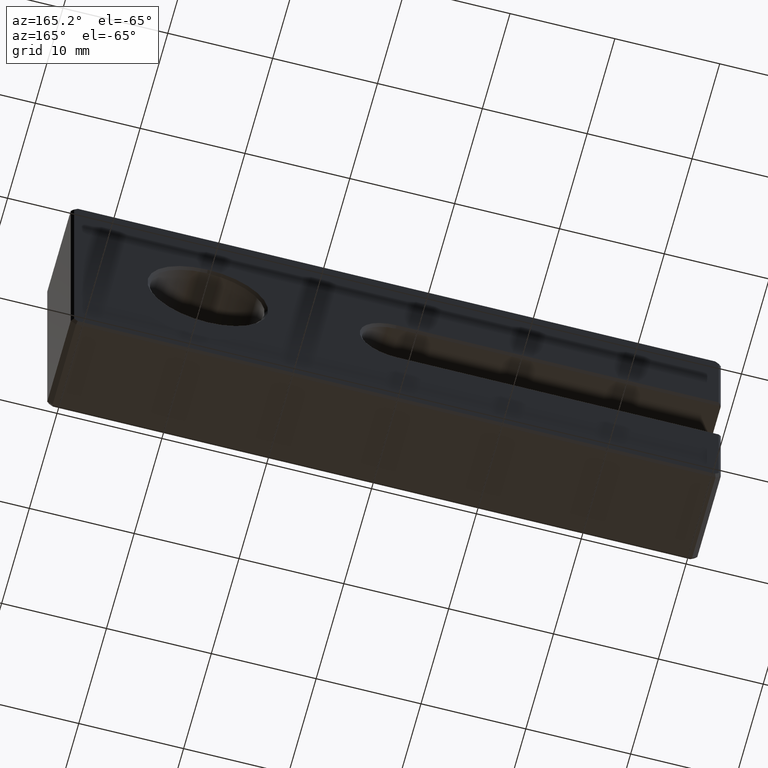
[diagram: clean part render]
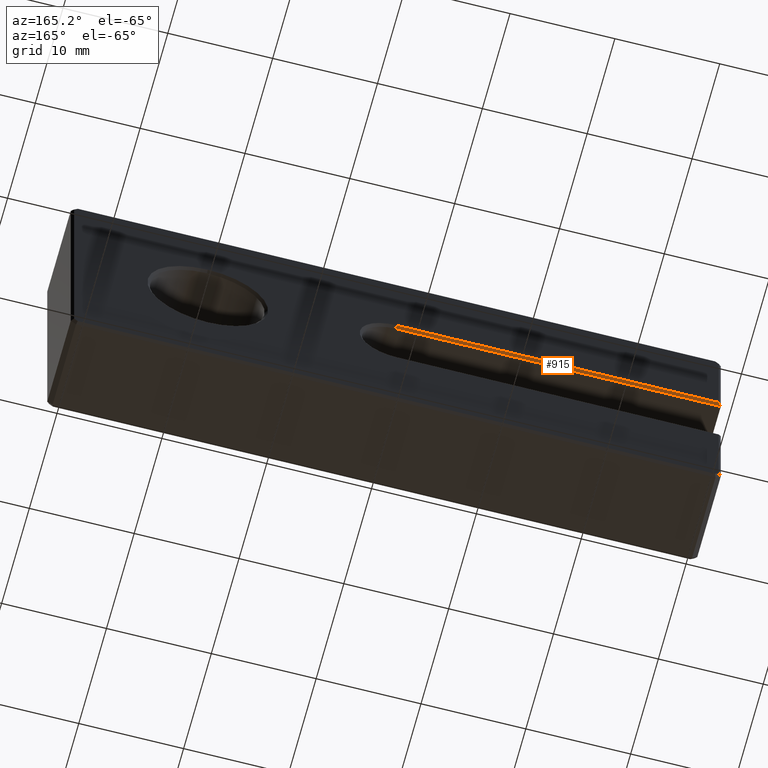
[diagram: same view with one face highlighted and labeled with its STEP entity id]
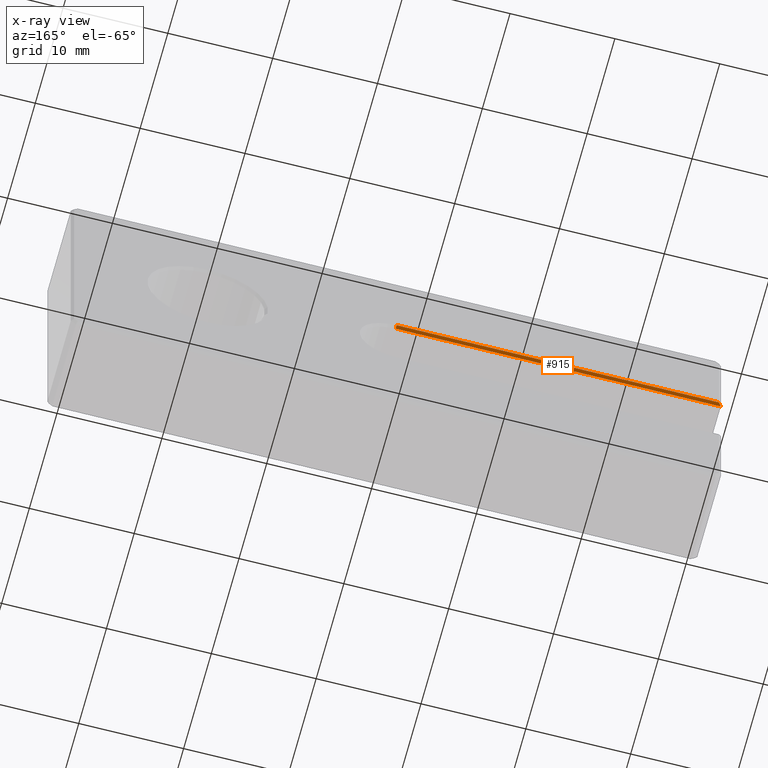
[diagram: x-ray of the same camera — body ghosted, the highlighted face saturated]
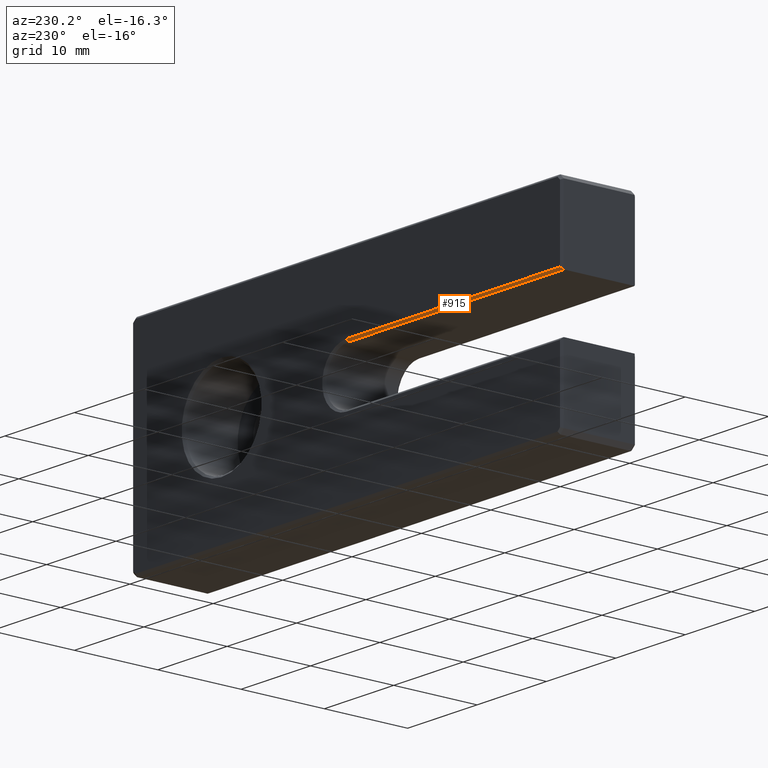
[diagram: same view with one face highlighted and labeled with its STEP entity id]
A machine part, auxiliary view. The second image highlights one B-rep face of the part: STEP entity #915.
The next image is the same camera in x-ray: the body ghosted, the highlighted face saturated — about 0% of this face is hidden behind the body in this view.
A second angle (auxiliary view) of the same face is appended — the face is thin or edge-on in the first view.
In plain terms, the highlighted planar face has unit normal (-0, 0.7071, -0.7071).
Its self-contained STEP definition (entity closure, byte-faithful):
#10 = ORIENTED_EDGE ( 'NONE', *, *, #746, .F. ) ;
#19 = VECTOR ( 'NONE', #812, 1000.000000000000114 ) ;
#142 = LINE ( 'NONE', #503, #386 ) ;
#172 = VECTOR ( 'NONE', #236, 1000.000000000000000 ) ;
#226 = CARTESIAN_POINT ( 'NONE',  ( 1.398970545142586973E-17, 9.000000000000000000, 3.500000000000000000 ) ) ;
#228 = ORIENTED_EDGE ( 'NONE', *, *, #1095, .T. ) ;
#236 = DIRECTION ( 'NONE',  ( -1.000000000000000000, 0.000000000000000000, 5.595882180570342961E-17 ) ) ;
#238 = AXIS2_PLACEMENT_3D ( 'NONE', #1005, #556, #919 ) ;
#317 = ORIENTED_EDGE ( 'NONE', *, *, #533, .F. ) ;
#386 = VECTOR ( 'NONE', #509, 1000.000000000000000 ) ;
#503 = CARTESIAN_POINT ( 'NONE',  ( -41.33333333333325044, -1.583333333333311721, -7.083333333333308168 ) ) ;
#509 = DIRECTION ( 'NONE',  ( -0.5773502691896231775, -0.5773502691896270633, -0.5773502691896270633 ) ) ;
#517 = LINE ( 'NONE', #1063, #19 ) ;
#533 = EDGE_CURVE ( 'NONE', #543, #997, #142, .T. ) ;
#543 = VERTEX_POINT ( 'NONE', #1146 ) ;
#556 = DIRECTION ( 'NONE',  ( -3.956886236602254131E-17, 0.7071067811865475727, -0.7071067811865475727 ) ) ;
#584 = EDGE_CURVE ( 'NONE', #611, #543, #1048, .T. ) ;
#611 = VERTEX_POINT ( 'NONE', #226 ) ;
#639 = LINE ( 'NONE', #998, #654 ) ;
#644 = PLANE ( 'NONE',  #238 ) ;
#654 = VECTOR ( 'NONE', #809, 1000.000000000000000 ) ;
#686 = VERTEX_POINT ( 'NONE', #1083 ) ;
#746 = EDGE_CURVE ( 'NONE', #997, #686, #639, .T. ) ;
#752 = ORIENTED_EDGE ( 'NONE', *, *, #584, .F. ) ;
#778 = CARTESIAN_POINT ( 'NONE',  ( -31.00000000000000711, 9.000000000000000000, 3.500000000000001776 ) ) ;
#809 = DIRECTION ( 'NONE',  ( 1.000000000000000000, 0.000000000000000000, -5.595882180570342961E-17 ) ) ;
#812 = DIRECTION ( 'NONE',  ( -3.956886236602253514E-17, -0.7071067811865474617, -0.7071067811865474617 ) ) ;
#915 = ADVANCED_FACE ( 'NONE', ( #1097 ), #644, .T. ) ;
#919 = DIRECTION ( 'NONE',  ( -1.000000000000000000, 0.000000000000000000, 5.595882180570342961E-17 ) ) ;
#961 = CARTESIAN_POINT ( 'NONE',  ( -31.00000000000000355, 8.749999999999998224, 3.250000000000004441 ) ) ;
#997 = VERTEX_POINT ( 'NONE', #961 ) ;
#998 = CARTESIAN_POINT ( 'NONE',  ( 0.000000000000000000, 8.749999999999998224, 3.250000000000000000 ) ) ;
#1005 = CARTESIAN_POINT ( 'NONE',  ( -62.00000000000001421, 8.749999999999998224, 3.250000000000003109 ) ) ;
#1048 = LINE ( 'NONE', #778, #172 ) ;
#1063 = CARTESIAN_POINT ( 'NONE',  ( 1.398970545142586973E-17, 9.000000000000000000, 3.500000000000000000 ) ) ;
#1083 = CARTESIAN_POINT ( 'NONE',  ( 0.000000000000000000, 8.749999999999998224, 3.250000000000000000 ) ) ;
#1095 = EDGE_CURVE ( 'NONE', #611, #686, #517, .T. ) ;
#1097 = FACE_OUTER_BOUND ( 'NONE', #1101, .T. ) ;
#1101 = EDGE_LOOP ( 'NONE', ( #228, #10, #317, #752 ) ) ;
#1146 = CARTESIAN_POINT ( 'NONE',  ( -30.75000000000000711, 9.000000000000000000, 3.500000000000001776 ) ) ;